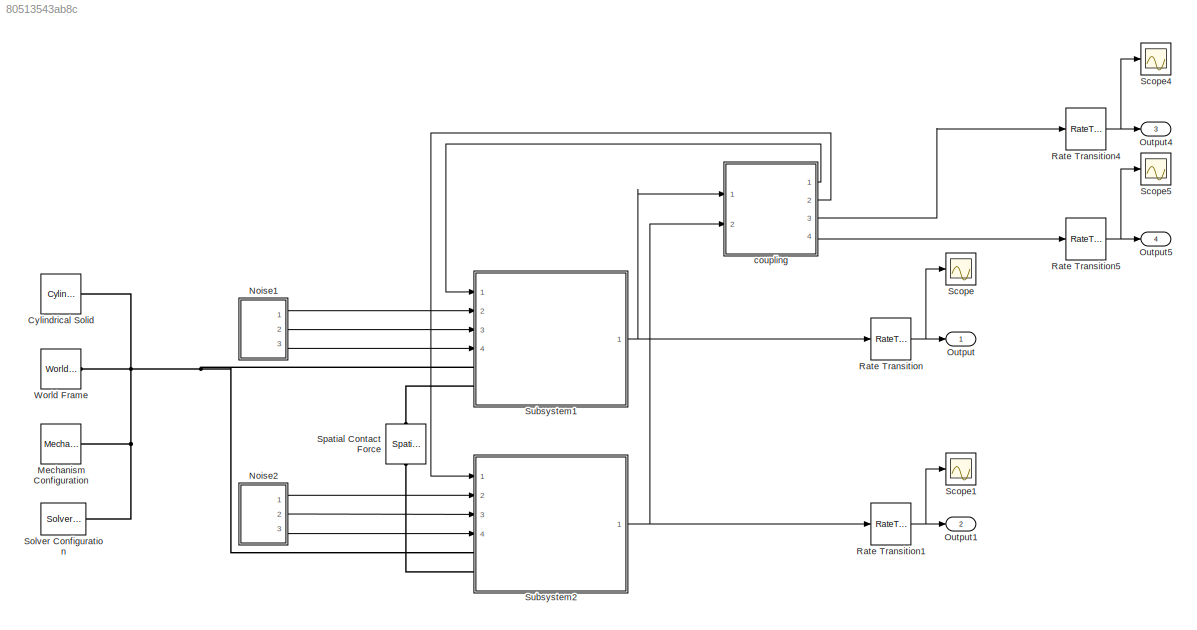
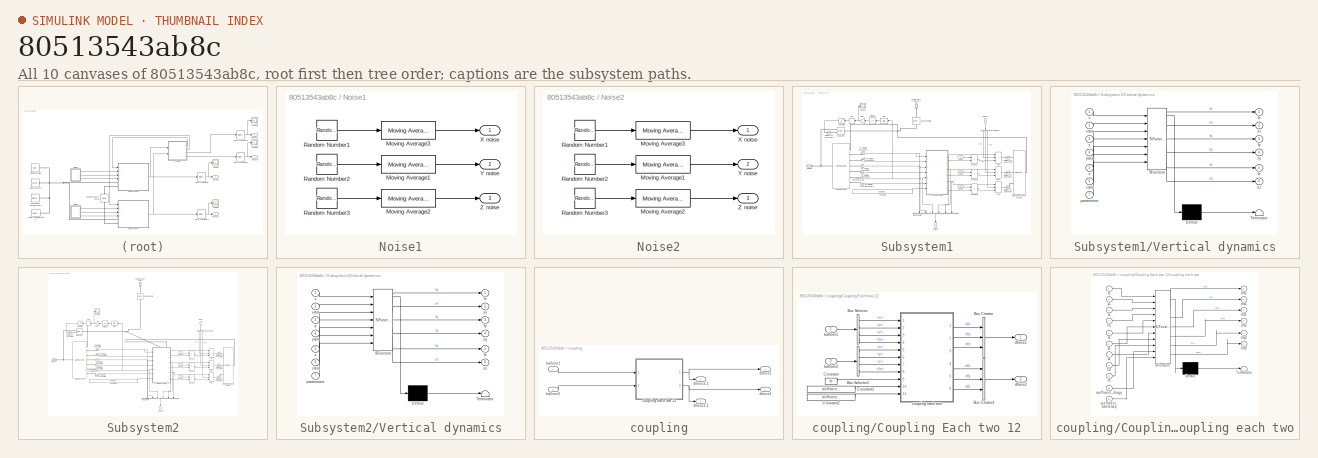
[diagram: thumbnail index - all 10 canvases of the model, root first then tree order]
MODEL slx_80513543ab8c
KIND model
CONFIG AbsTol = auto
CONFIG EnableMultiTasking = off
CONFIG FixedStep = auto
CONFIG InitFcn = seed1 = randi(100000);\nseed2 = randi(200000);
CONFIG MaxStep = auto
CONFIG MinStep = auto
CONFIG RelTol = 1e-3
CONFIG SampleTimeConstraint = Unconstrained
CONFIG SolverName = VariableStepAuto
CONFIG StartTime = 0.0
CONFIG StopTime = 300
BLOCK [Reference] Cylindrical Solid  REF=sm_lib/Body Elements/Cylindrical Solid
  Ports = [0, 0, 0, 0, 0, 0, 1]
  SourceBlock = sm_lib/Body Elements/Cylindrical Solid
  SourceProductBaseCode = MS
  SourceType = Cylindrical Solid
BLOCK [Reference] Mechanism Configuration  REF=sm_lib/Utilities/Mechanism
Configuration
  Ports = [0, 0, 0, 0, 0, 0, 1]
  SourceBlock = sm_lib/Utilities/Mechanism\nConfiguration
  SourceProductBaseCode = MS
  SourceType = Mechanism\nConfiguration
BLOCK [SubSystem] Noise1
  Ports = [0, 3]
  RequestExecContextInheritance = off
BLOCK [Outport] Noise1/ Y noise
  Port = 2
BLOCK [Reference] Noise1/Moving Average1  REF=eeGeneralControl/Moving Average
  Ports = [1, 1]
  SourceBlock = eeGeneralControl/Moving Average
  SourceProductBaseCode = PS
  SourceType = Moving Average
BLOCK [Reference] Noise1/Moving Average2  REF=eeGeneralControl/Moving Average
  Ports = [1, 1]
  SourceBlock = eeGeneralControl/Moving Average
  SourceProductBaseCode = PS
  SourceType = Moving Average
BLOCK [Reference] Noise1/Moving Average3  REF=eeGeneralControl/Moving Average
  Ports = [1, 1]
  SourceBlock = eeGeneralControl/Moving Average
  SourceProductBaseCode = PS
  SourceType = Moving Average
BLOCK [RandomNumber] Noise1/Random Number1
  SampleTime = nS
  Seed = seedX1
  Variance = nH
BLOCK [RandomNumber] Noise1/Random Number2
  SampleTime = nS
  Seed = seedY1
  Variance = nH
BLOCK [RandomNumber] Noise1/Random Number3
  SampleTime = nS
  Seed = seedZ1
  Variance = nV
BLOCK [Outport] Noise1/X noise
BLOCK [Outport] Noise1/Z noise
  Port = 3
BLOCK [SubSystem] Noise2
  Ports = [0, 3]
  RequestExecContextInheritance = off
BLOCK [Outport] Noise2/ Y noise
  Port = 2
BLOCK [Reference] Noise2/Moving Average1  REF=eeGeneralControl/Moving Average
  Ports = [1, 1]
  SourceBlock = eeGeneralControl/Moving Average
  SourceProductBaseCode = PS
  SourceType = Moving Average
BLOCK [Reference] Noise2/Moving Average2  REF=eeGeneralControl/Moving Average
  Ports = [1, 1]
  SourceBlock = eeGeneralControl/Moving Average
  SourceProductBaseCode = PS
  SourceType = Moving Average
BLOCK [Reference] Noise2/Moving Average3  REF=eeGeneralControl/Moving Average
  Ports = [1, 1]
  SourceBlock = eeGeneralControl/Moving Average
  SourceProductBaseCode = PS
  SourceType = Moving Average
BLOCK [RandomNumber] Noise2/Random Number1
  SampleTime = nS
  Seed = seedX2
  Variance = nH
BLOCK [RandomNumber] Noise2/Random Number2
  SampleTime = nS
  Seed = seedY2
  Variance = nH
BLOCK [RandomNumber] Noise2/Random Number3
  SampleTime = nS
  Seed = seedZ2
  Variance = nV
BLOCK [Outport] Noise2/X noise
BLOCK [Outport] Noise2/Z noise
  Port = 3
BLOCK [Outport] Output
BLOCK [Outport] Output1
  Port = 2
BLOCK [Outport] Output4
  Port = 3
BLOCK [Outport] Output5
  Port = 4
BLOCK [RateTransition] Rate Transition
  OutPortSampleTime = 1/30
BLOCK [RateTransition] Rate Transition1
  OutPortSampleTime = 1/30
BLOCK [RateTransition] Rate Transition4
  OutPortSampleTime = 1/30
BLOCK [RateTransition] Rate Transition5
  OutPortSampleTime = 1/30
BLOCK [Scope] Scope
  Floating = off
  NumInputPorts = 1
  Ports = [1]
  ScopeSpecificationString = Simulink.scopes.TimeScopeBlockCfg('CurrentConfiguration', extmgr.ConfigurationSet(extmgr.Configuration('Core','General UI',true),extmgr.Configuration('Core','Source UI',true),extmgr.Configuration('Sources','WiredSimulink',true,'DataLoggingVariableName','ScopeData1'),extmgr.Configuration('Visuals','Time Domain',true,'SerializedDisplays',{struct('MinYLimReal','-1.07068','MaxYLimReal','1.0184','YLabe...<+1551ch>
BLOCK [Scope] Scope1
  Floating = off
  NumInputPorts = 1
  Ports = [1]
  ScopeSpecificationString = Simulink.scopes.TimeScopeBlockCfg('CurrentConfiguration', extmgr.ConfigurationSet(extmgr.Configuration('Core','General UI',true),extmgr.Configuration('Core','Source UI',true),extmgr.Configuration('Sources','WiredSimulink',true,'DataLoggingVariableName','ScopeData2'),extmgr.Configuration('Visuals','Time Domain',true,'SerializedDisplays',{struct('MinYLimReal','-157.50413','MaxYLimReal','351.95836','...<+1529ch>
BLOCK [Scope] Scope4
  Floating = off
  NumInputPorts = 1
  Ports = [1]
  ScopeSpecificationString = Simulink.scopes.TimeScopeBlockCfg('CurrentConfiguration', extmgr.ConfigurationSet(extmgr.Configuration('Core','General UI',true),extmgr.Configuration('Core','Source UI',true),extmgr.Configuration('Sources','WiredSimulink',true,'DataLoggingVariableName','ScopeData1'),extmgr.Configuration('Visuals','Time Domain',true,'SerializedDisplays',{struct('MinYLimReal','-1.07068','MaxYLimReal','1.0184','YLabe...<+1551ch>
BLOCK [Scope] Scope5
  Floating = off
  NumInputPorts = 1
  Ports = [1]
  ScopeSpecificationString = Simulink.scopes.TimeScopeBlockCfg('CurrentConfiguration', extmgr.ConfigurationSet(extmgr.Configuration('Core','General UI',true),extmgr.Configuration('Core','Source UI',true),extmgr.Configuration('Sources','WiredSimulink',true,'DataLoggingVariableName','ScopeData2'),extmgr.Configuration('Visuals','Time Domain',true,'SerializedDisplays',{struct('MinYLimReal','-1.07068','MaxYLimReal','1.0184','YLabe...<+1551ch>
BLOCK [Reference] Solver Configuration  REF=nesl_utility/Solver
Configuration
  Ports = [0, 0, 0, 0, 0, 0, 1]
  SourceBlock = nesl_utility/Solver\nConfiguration
  SourceProductBaseCode = SS
  SourceType = Solver\nConfiguration
BLOCK [Reference] Spatial Contact Force  REF=sm_lib/Forces and
Torques/Spatial
Contact Force
  NameLocation = left
  Ports = [0, 0, 0, 0, 0, 1, 1]
  SourceBlock = sm_lib/Forces and\nTorques/Spatial\nContact Force
  SourceProductBaseCode = MS
  SourceType = Spatial\nContact Force
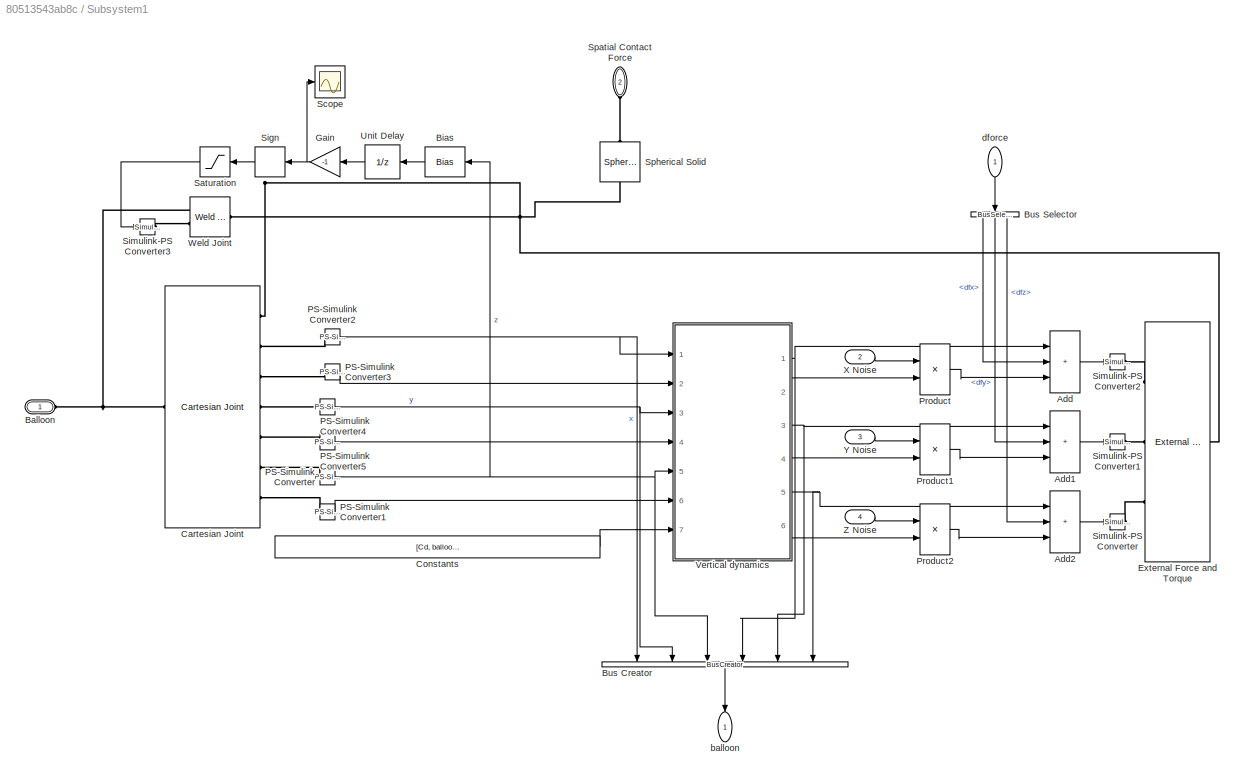
BLOCK [SubSystem] Subsystem1
  Ports = [4, 1, 0, 0, 0, 2]
  RequestExecContextInheritance = off
BLOCK [Sum] Subsystem1/Add
  IconShape = rectangular
  Inputs = +++
  Ports = [3, 1]
BLOCK [Sum] Subsystem1/Add1
  IconShape = rectangular
  Inputs = +++
  Ports = [3, 1]
BLOCK [Sum] Subsystem1/Add2
  IconShape = rectangular
  Inputs = +++
  Ports = [3, 1]
BLOCK [PMIOPort] Subsystem1/Balloon
  Side = Left
BLOCK [Bias] Subsystem1/Bias
  Bias = balloonRadius
  NameLocation = top
  SaturateOnIntegerOverflow = off
BLOCK [BusCreator] Subsystem1/Bus Creator
  DisplayOption = bar
  InheritFromInputs = on
  Inputs = 6
  NameLocation = left
  Ports = [6, 1]
BLOCK [BusSelector] Subsystem1/Bus Selector
  NameLocation = left
  OutputSignals = dfx,dfy,dfz
  Ports = [1, 3]
BLOCK [Reference] Subsystem1/Cartesian Joint  REF=sm_lib/Joints/Cartesian
Joint
  Ports = [0, 0, 0, 0, 0, 1, 7]
  SourceBlock = sm_lib/Joints/Cartesian\nJoint
  SourceProductBaseCode = MS
  SourceType = Cartesian\nJoint
BLOCK [Constant] Subsystem1/Constants
  Value = [Cd, balloonRadius, nozzleRadius, theta, V0, normalScaling]
BLOCK [Reference] Subsystem1/External Force and Torque  REF=sm_lib/Forces and
Torques/External Force
and Torque
  Ports = [0, 0, 0, 0, 0, 3, 1]
  SourceBlock = sm_lib/Forces and\nTorques/External Force\nand Torque
  SourceProductBaseCode = MS
  SourceType = External Force\nand Torque
BLOCK [Gain] Subsystem1/Gain
  Gain = -1
  NameLocation = top
BLOCK [Reference] Subsystem1/PS-Simulink Converter  REF=nesl_utility/PS-Simulink
Converter
  Ports = [0, 1, 0, 0, 0, 1]
  SourceBlock = nesl_utility/PS-Simulink\nConverter
  SourceProductBaseCode = SS
  SourceType = PS-Simulink\nConverter
BLOCK [Reference] Subsystem1/PS-Simulink Converter1  REF=nesl_utility/PS-Simulink
Converter
  Ports = [0, 1, 0, 0, 0, 1]
  SourceBlock = nesl_utility/PS-Simulink\nConverter
  SourceProductBaseCode = SS
  SourceType = PS-Simulink\nConverter
BLOCK [Reference] Subsystem1/PS-Simulink Converter2  REF=nesl_utility/PS-Simulink
Converter
  Ports = [0, 1, 0, 0, 0, 1]
  SourceBlock = nesl_utility/PS-Simulink\nConverter
  SourceProductBaseCode = SS
  SourceType = PS-Simulink\nConverter
BLOCK [Reference] Subsystem1/PS-Simulink Converter3  REF=nesl_utility/PS-Simulink
Converter
  Ports = [0, 1, 0, 0, 0, 1]
  SourceBlock = nesl_utility/PS-Simulink\nConverter
  SourceProductBaseCode = SS
  SourceType = PS-Simulink\nConverter
BLOCK [Reference] Subsystem1/PS-Simulink Converter4  REF=nesl_utility/PS-Simulink
Converter
  Ports = [0, 1, 0, 0, 0, 1]
  SourceBlock = nesl_utility/PS-Simulink\nConverter
  SourceProductBaseCode = SS
  SourceType = PS-Simulink\nConverter
BLOCK [Reference] Subsystem1/PS-Simulink Converter5  REF=nesl_utility/PS-Simulink
Converter
  Ports = [0, 1, 0, 0, 0, 1]
  SourceBlock = nesl_utility/PS-Simulink\nConverter
  SourceProductBaseCode = SS
  SourceType = PS-Simulink\nConverter
BLOCK [Product] Subsystem1/Product
  Ports = [2, 1]
BLOCK [Product] Subsystem1/Product1
  Ports = [2, 1]
BLOCK [Product] Subsystem1/Product2
  Ports = [2, 1]
BLOCK [Saturate] Subsystem1/Saturation
  LowerLimit = -1
  NameLocation = top
  UpperLimit = 0
BLOCK [Scope] Subsystem1/Scope
  Floating = off
  NumInputPorts = 1
  Ports = [1]
  ScopeSpecificationString = Simulink.scopes.TimeScopeBlockCfg('CurrentConfiguration', extmgr.ConfigurationSet(extmgr.Configuration('Core','General UI',true),extmgr.Configuration('Core','Source UI',true),extmgr.Configuration('Sources','WiredSimulink',true,'DataLoggingVariableName','ScopeData2'),extmgr.Configuration('Visuals','Time Domain',true,'SerializedDisplays',{struct('MinYLimReal','-2.54822','MaxYLimReal','0.3081','YLabe...<+1391ch>
BLOCK [Signum] Subsystem1/Sign
  NameLocation = top
BLOCK [Reference] Subsystem1/Simulink-PS Converter  REF=nesl_utility/Simulink-PS
Converter
  Ports = [1, 0, 0, 0, 0, 0, 1]
  SourceBlock = nesl_utility/Simulink-PS\nConverter
  SourceProductBaseCode = SS
  SourceType = Simulink-PS\nConverter
BLOCK [Reference] Subsystem1/Simulink-PS Converter1  REF=nesl_utility/Simulink-PS
Converter
  Ports = [1, 0, 0, 0, 0, 0, 1]
  SourceBlock = nesl_utility/Simulink-PS\nConverter
  SourceProductBaseCode = SS
  SourceType = Simulink-PS\nConverter
BLOCK [Reference] Subsystem1/Simulink-PS Converter2  REF=nesl_utility/Simulink-PS
Converter
  Ports = [1, 0, 0, 0, 0, 0, 1]
  SourceBlock = nesl_utility/Simulink-PS\nConverter
  SourceProductBaseCode = SS
  SourceType = Simulink-PS\nConverter
BLOCK [Reference] Subsystem1/Simulink-PS Converter3  REF=nesl_utility/Simulink-PS
Converter
  Ports = [1, 0, 0, 0, 0, 0, 1]
  SourceBlock = nesl_utility/Simulink-PS\nConverter
  SourceProductBaseCode = SS
  SourceType = Simulink-PS\nConverter
BLOCK [PMIOPort] Subsystem1/Spatial Contact Force
  NameLocation = left
  Port = 2
  Side = Left
BLOCK [Reference] Subsystem1/Spherical Solid  REF=sm_lib/Body Elements/Spherical Solid
  NameLocation = left
  Ports = [0, 0, 0, 0, 0, 1, 1]
  SourceBlock = sm_lib/Body Elements/Spherical Solid
  SourceProductBaseCode = MS
  SourceType = Spherical Solid
BLOCK [UnitDelay] Subsystem1/Unit Delay
  HasFrameUpgradeWarning = on
  InitialCondition = initialHeight+balloonRadius
  NameLocation = top
  SampleTime = 0.01
BLOCK [SubSystem] Subsystem1/Vertical dynamics
  ErrorFcn = Stateflow.Translate.translate
  PermitHierarchicalResolution = ExplicitOnly
  Ports = [7, 6]
  RequestExecContextInheritance = off
  SFBlockType = MATLAB Function
  TreatAsAtomicUnit = on
BLOCK [Demux] Subsystem1/Vertical dynamics/ Demux 
  Outputs = 1
  Ports = [1, 1]
BLOCK [S-Function] Subsystem1/Vertical dynamics/ SFunction 
  EnableBusSupport = on
  FunctionName = sf_sfun
  PortCounts = [7 7]
  Ports = [7, 7]
  SFcnIsStateOwnerBlock = off
  SFunctionDeploymentMode = off
  Tag = Stateflow S-Function 2
BLOCK [Terminator] Subsystem1/Vertical dynamics/ Terminator 
BLOCK [Outport] Subsystem1/Vertical dynamics/fx
BLOCK [Outport] Subsystem1/Vertical dynamics/fy
  Port = 3
BLOCK [Outport] Subsystem1/Vertical dynamics/fz
  Port = 5
BLOCK [Inport] Subsystem1/Vertical dynamics/parameters
  Port = 7
BLOCK [Outport] Subsystem1/Vertical dynamics/sx
  Port = 2
BLOCK [Outport] Subsystem1/Vertical dynamics/sy
  Port = 4
BLOCK [Outport] Subsystem1/Vertical dynamics/sz
  Port = 6
BLOCK [Inport] Subsystem1/Vertical dynamics/x
BLOCK [Inport] Subsystem1/Vertical dynamics/xdot
  Port = 2
BLOCK [Inport] Subsystem1/Vertical dynamics/y
  Port = 3
BLOCK [Inport] Subsystem1/Vertical dynamics/ydot
  Port = 4
BLOCK [Inport] Subsystem1/Vertical dynamics/z
  Port = 5
BLOCK [Inport] Subsystem1/Vertical dynamics/zdot
  Port = 6
BLOCK [Reference] Subsystem1/Weld Joint  REF=sm_lib/Joints/Weld Joint
  Ports = [0, 0, 0, 0, 0, 2, 1]
  SourceBlock = sm_lib/Joints/Weld Joint
  SourceProductBaseCode = MS
  SourceType = Weld Joint
BLOCK [Inport] Subsystem1/X Noise
  Port = 2
BLOCK [Inport] Subsystem1/Y Noise
  Port = 3
BLOCK [Inport] Subsystem1/Z Noise
  Port = 4
BLOCK [Outport] Subsystem1/balloon
  NameLocation = left
BLOCK [Inport] Subsystem1/dforce
  NameLocation = left
BLOCK [SubSystem] Subsystem2
  Ports = [4, 1, 0, 0, 0, 2]
  RequestExecContextInheritance = off
BLOCK [Sum] Subsystem2/Add
  IconShape = rectangular
  Inputs = +++
  Ports = [3, 1]
BLOCK [Sum] Subsystem2/Add1
  IconShape = rectangular
  Inputs = +++
  Ports = [3, 1]
BLOCK [Sum] Subsystem2/Add2
  IconShape = rectangular
  Inputs = +++
  Ports = [3, 1]
BLOCK [PMIOPort] Subsystem2/Balloon
  Side = Left
BLOCK [Bias] Subsystem2/Bias
  Bias = balloonRadius
  NameLocation = top
  SaturateOnIntegerOverflow = off
BLOCK [BusCreator] Subsystem2/Bus Creator
  DisplayOption = bar
  InheritFromInputs = on
  Inputs = 6
  NameLocation = left
  Ports = [6, 1]
BLOCK [BusSelector] Subsystem2/Bus Selector
  NameLocation = left
  OutputSignals = dfx,dfy,dfz
  Ports = [1, 3]
BLOCK [Reference] Subsystem2/Cartesian Joint  REF=sm_lib/Joints/Cartesian
Joint
  Ports = [0, 0, 0, 0, 0, 1, 7]
  SourceBlock = sm_lib/Joints/Cartesian\nJoint
  SourceProductBaseCode = MS
  SourceType = Cartesian\nJoint
BLOCK [Constant] Subsystem2/Constants
  Value = [Cd, balloonRadius, nozzleRadius, theta, V0, normalScaling]
BLOCK [Reference] Subsystem2/External Force and Torque  REF=sm_lib/Forces and
Torques/External Force
and Torque
  Ports = [0, 0, 0, 0, 0, 3, 1]
  SourceBlock = sm_lib/Forces and\nTorques/External Force\nand Torque
  SourceProductBaseCode = MS
  SourceType = External Force\nand Torque
BLOCK [Gain] Subsystem2/Gain
  Gain = -1
  NameLocation = top
BLOCK [Reference] Subsystem2/PS-Simulink Converter  REF=nesl_utility/PS-Simulink
Converter
  Ports = [0, 1, 0, 0, 0, 1]
  SourceBlock = nesl_utility/PS-Simulink\nConverter
  SourceProductBaseCode = SS
  SourceType = PS-Simulink\nConverter
BLOCK [Reference] Subsystem2/PS-Simulink Converter1  REF=nesl_utility/PS-Simulink
Converter
  Ports = [0, 1, 0, 0, 0, 1]
  SourceBlock = nesl_utility/PS-Simulink\nConverter
  SourceProductBaseCode = SS
  SourceType = PS-Simulink\nConverter
BLOCK [Reference] Subsystem2/PS-Simulink Converter2  REF=nesl_utility/PS-Simulink
Converter
  Ports = [0, 1, 0, 0, 0, 1]
  SourceBlock = nesl_utility/PS-Simulink\nConverter
  SourceProductBaseCode = SS
  SourceType = PS-Simulink\nConverter
BLOCK [Reference] Subsystem2/PS-Simulink Converter3  REF=nesl_utility/PS-Simulink
Converter
  Ports = [0, 1, 0, 0, 0, 1]
  SourceBlock = nesl_utility/PS-Simulink\nConverter
  SourceProductBaseCode = SS
  SourceType = PS-Simulink\nConverter
BLOCK [Reference] Subsystem2/PS-Simulink Converter4  REF=nesl_utility/PS-Simulink
Converter
  Ports = [0, 1, 0, 0, 0, 1]
  SourceBlock = nesl_utility/PS-Simulink\nConverter
  SourceProductBaseCode = SS
  SourceType = PS-Simulink\nConverter
BLOCK [Reference] Subsystem2/PS-Simulink Converter5  REF=nesl_utility/PS-Simulink
Converter
  Ports = [0, 1, 0, 0, 0, 1]
  SourceBlock = nesl_utility/PS-Simulink\nConverter
  SourceProductBaseCode = SS
  SourceType = PS-Simulink\nConverter
BLOCK [Product] Subsystem2/Product
  Ports = [2, 1]
BLOCK [Product] Subsystem2/Product1
  Ports = [2, 1]
BLOCK [Product] Subsystem2/Product2
  Ports = [2, 1]
BLOCK [Saturate] Subsystem2/Saturation
  LowerLimit = -1
  NameLocation = top
  UpperLimit = 0
BLOCK [Scope] Subsystem2/Scope
  Floating = off
  NumInputPorts = 1
  Ports = [1]
  ScopeSpecificationString = Simulink.scopes.TimeScopeBlockCfg('CurrentConfiguration', extmgr.ConfigurationSet(extmgr.Configuration('Core','General UI',true),extmgr.Configuration('Core','Source UI',true),extmgr.Configuration('Sources','WiredSimulink',true,'DataLoggingVariableName','ScopeData2'),extmgr.Configuration('Visuals','Time Domain',true,'SerializedDisplays',{struct('MinYLimReal','-0.54','MaxYLimReal','-0.34','YLabelRea...<+1377ch>
BLOCK [Signum] Subsystem2/Sign
  NameLocation = top
BLOCK [Reference] Subsystem2/Simulink-PS Converter  REF=nesl_utility/Simulink-PS
Converter
  Ports = [1, 0, 0, 0, 0, 0, 1]
  SourceBlock = nesl_utility/Simulink-PS\nConverter
  SourceProductBaseCode = SS
  SourceType = Simulink-PS\nConverter
BLOCK [Reference] Subsystem2/Simulink-PS Converter1  REF=nesl_utility/Simulink-PS
Converter
  Ports = [1, 0, 0, 0, 0, 0, 1]
  SourceBlock = nesl_utility/Simulink-PS\nConverter
  SourceProductBaseCode = SS
  SourceType = Simulink-PS\nConverter
BLOCK [Reference] Subsystem2/Simulink-PS Converter2  REF=nesl_utility/Simulink-PS
Converter
  Ports = [1, 0, 0, 0, 0, 0, 1]
  SourceBlock = nesl_utility/Simulink-PS\nConverter
  SourceProductBaseCode = SS
  SourceType = Simulink-PS\nConverter
BLOCK [Reference] Subsystem2/Simulink-PS Converter3  REF=nesl_utility/Simulink-PS
Converter
  Ports = [1, 0, 0, 0, 0, 0, 1]
  SourceBlock = nesl_utility/Simulink-PS\nConverter
  SourceProductBaseCode = SS
  SourceType = Simulink-PS\nConverter
BLOCK [PMIOPort] Subsystem2/Spatial Contact Force
  NameLocation = left
  Port = 2
  Side = Left
BLOCK [Reference] Subsystem2/Spherical Solid  REF=sm_lib/Body Elements/Spherical Solid
  NameLocation = left
  Ports = [0, 0, 0, 0, 0, 1, 1]
  SourceBlock = sm_lib/Body Elements/Spherical Solid
  SourceProductBaseCode = MS
  SourceType = Spherical Solid
BLOCK [UnitDelay] Subsystem2/Unit Delay
  HasFrameUpgradeWarning = on
  InitialCondition = initialHeight+balloonRadius
  NameLocation = top
  SampleTime = 0.01
BLOCK [SubSystem] Subsystem2/Vertical dynamics
  ErrorFcn = Stateflow.Translate.translate
  PermitHierarchicalResolution = ExplicitOnly
  Ports = [7, 6]
  RequestExecContextInheritance = off
  SFBlockType = MATLAB Function
  TreatAsAtomicUnit = on
BLOCK [Demux] Subsystem2/Vertical dynamics/ Demux 
  Outputs = 1
  Ports = [1, 1]
BLOCK [S-Function] Subsystem2/Vertical dynamics/ SFunction 
  EnableBusSupport = on
  FunctionName = sf_sfun
  PortCounts = [7 7]
  Ports = [7, 7]
  SFcnIsStateOwnerBlock = off
  SFunctionDeploymentMode = off
  Tag = Stateflow S-Function 1
BLOCK [Terminator] Subsystem2/Vertical dynamics/ Terminator 
BLOCK [Outport] Subsystem2/Vertical dynamics/fx
BLOCK [Outport] Subsystem2/Vertical dynamics/fy
  Port = 3
BLOCK [Outport] Subsystem2/Vertical dynamics/fz
  Port = 5
BLOCK [Inport] Subsystem2/Vertical dynamics/parameters
  Port = 7
BLOCK [Outport] Subsystem2/Vertical dynamics/sx
  Port = 2
BLOCK [Outport] Subsystem2/Vertical dynamics/sy
  Port = 4
BLOCK [Outport] Subsystem2/Vertical dynamics/sz
  Port = 6
BLOCK [Inport] Subsystem2/Vertical dynamics/x
BLOCK [Inport] Subsystem2/Vertical dynamics/xdot
  Port = 2
BLOCK [Inport] Subsystem2/Vertical dynamics/y
  Port = 3
BLOCK [Inport] Subsystem2/Vertical dynamics/ydot
  Port = 4
BLOCK [Inport] Subsystem2/Vertical dynamics/z
  Port = 5
BLOCK [Inport] Subsystem2/Vertical dynamics/zdot
  Port = 6
BLOCK [Reference] Subsystem2/Weld Joint  REF=sm_lib/Joints/Weld Joint
  Ports = [0, 0, 0, 0, 0, 2, 1]
  SourceBlock = sm_lib/Joints/Weld Joint
  SourceProductBaseCode = MS
  SourceType = Weld Joint
BLOCK [Inport] Subsystem2/X Noise
  Port = 2
BLOCK [Inport] Subsystem2/Y Noise
  Port = 3
BLOCK [Inport] Subsystem2/Z Noise
  Port = 4
BLOCK [Outport] Subsystem2/balloon
  NameLocation = left
BLOCK [Inport] Subsystem2/dforce
  NameLocation = left
BLOCK [Reference] World Frame  REF=sm_lib/Frames and
Transforms/World Frame
  Ports = [0, 0, 0, 0, 0, 0, 1]
  SourceBlock = sm_lib/Frames and\nTransforms/World Frame
  SourceProductBaseCode = MS
  SourceType = World Frame
BLOCK [SubSystem] coupling
  Ports = [2, 4]
  RequestExecContextInheritance = off
BLOCK [SubSystem] coupling/Coupling Each two 12
  Ports = [2, 2]
  RequestExecContextInheritance = off
BLOCK [BusCreator] coupling/Coupling Each two 12/Bus Creator
  DisplayOption = bar
  InheritFromInputs = on
  Inputs = 3
  Ports = [3, 1]
BLOCK [BusCreator] coupling/Coupling Each two 12/Bus Creator1
  DisplayOption = bar
  InheritFromInputs = on
  Inputs = 3
  Ports = [3, 1]
BLOCK [BusSelector] coupling/Coupling Each two 12/Bus Selector
  OutputSignals = x,y,z,fz
  Ports = [1, 4]
BLOCK [BusSelector] coupling/Coupling Each two 12/Bus Selector1
  OutputSignals = x,y,z,fz
  Ports = [1, 4]
BLOCK [Constant] coupling/Coupling Each two 12/Constant
  Value = rb
BLOCK [Constant] coupling/Coupling Each two 12/Constant1
  Value = coefficient_dragq
BLOCK [Constant] coupling/Coupling Each two 12/Constant2
  Value = coefficient_sideforceq
BLOCK [Inport] coupling/Coupling Each two 12/balloon1
BLOCK [Inport] coupling/Coupling Each two 12/balloon2
  Port = 2
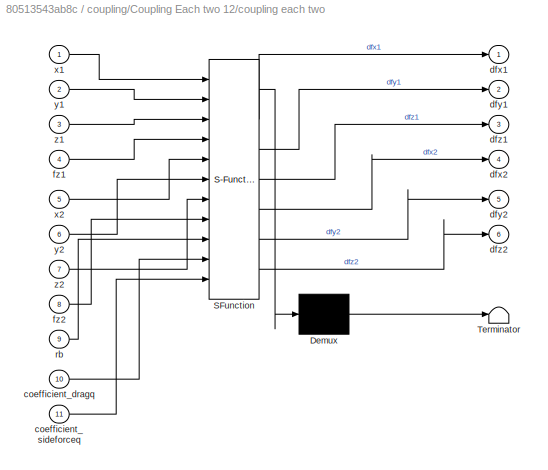
BLOCK [SubSystem] coupling/Coupling Each two 12/coupling each two
  ErrorFcn = Stateflow.Translate.translate
  PermitHierarchicalResolution = ExplicitOnly
  Ports = [11, 6]
  RequestExecContextInheritance = off
  SFBlockType = MATLAB Function
  TreatAsAtomicUnit = on
BLOCK [Demux] coupling/Coupling Each two 12/coupling each two/ Demux 
  Outputs = 1
  Ports = [1, 1]
BLOCK [S-Function] coupling/Coupling Each two 12/coupling each two/ SFunction 
  EnableBusSupport = on
  FunctionName = sf_sfun
  PortCounts = [11 7]
  Ports = [11, 7]
  SFcnIsStateOwnerBlock = off
  SFunctionDeploymentMode = off
  Tag = Stateflow S-Function 3
BLOCK [Terminator] coupling/Coupling Each two 12/coupling each two/ Terminator 
BLOCK [Inport] coupling/Coupling Each two 12/coupling each two/coefficient_dragq
  Port = 10
BLOCK [Inport] coupling/Coupling Each two 12/coupling each two/coefficient_sideforceq
  Port = 11
BLOCK [Outport] coupling/Coupling Each two 12/coupling each two/dfx1
BLOCK [Outport] coupling/Coupling Each two 12/coupling each two/dfx2
  Port = 4
BLOCK [Outport] coupling/Coupling Each two 12/coupling each two/dfy1
  Port = 2
BLOCK [Outport] coupling/Coupling Each two 12/coupling each two/dfy2
  Port = 5
BLOCK [Outport] coupling/Coupling Each two 12/coupling each two/dfz1
  Port = 3
BLOCK [Outport] coupling/Coupling Each two 12/coupling each two/dfz2
  Port = 6
BLOCK [Inport] coupling/Coupling Each two 12/coupling each two/fz1
  Port = 4
BLOCK [Inport] coupling/Coupling Each two 12/coupling each two/fz2
  Port = 8
BLOCK [Inport] coupling/Coupling Each two 12/coupling each two/rb
  Port = 9
BLOCK [Inport] coupling/Coupling Each two 12/coupling each two/x1
BLOCK [Inport] coupling/Coupling Each two 12/coupling each two/x2
  Port = 5
BLOCK [Inport] coupling/Coupling Each two 12/coupling each two/y1
  Port = 2
BLOCK [Inport] coupling/Coupling Each two 12/coupling each two/y2
  Port = 6
BLOCK [Inport] coupling/Coupling Each two 12/coupling each two/z1
  Port = 3
BLOCK [Inport] coupling/Coupling Each two 12/coupling each two/z2
  Port = 7
BLOCK [Outport] coupling/Coupling Each two 12/dforce1
BLOCK [Outport] coupling/Coupling Each two 12/dforce2
  Port = 2
BLOCK [Inport] coupling/balloon1
BLOCK [Inport] coupling/balloon2
  Port = 2
BLOCK [Outport] coupling/dforce1
BLOCK [Outport] coupling/dforce1-2
  Port = 4
BLOCK [Outport] coupling/dforce2
  Port = 2
BLOCK [Outport] coupling/dforce2-1
  Port = 3
LINE Noise1/Moving Average1:1 -> Noise1/ Y noise:1
LINE Noise1/Moving Average2:1 -> Noise1/Z noise:1
LINE Noise1/Moving Average3:1 -> Noise1/X noise:1
LINE Noise1/Random Number1:1 -> Noise1/Moving Average3:1
LINE Noise1/Random Number2:1 -> Noise1/Moving Average1:1
LINE Noise1/Random Number3:1 -> Noise1/Moving Average2:1
LINE Noise1:1 -> Subsystem1:2
LINE Noise1:2 -> Subsystem1:3
LINE Noise1:3 -> Subsystem1:4
LINE Noise2/Moving Average1:1 -> Noise2/ Y noise:1
LINE Noise2/Moving Average2:1 -> Noise2/Z noise:1
LINE Noise2/Moving Average3:1 -> Noise2/X noise:1
LINE Noise2/Random Number1:1 -> Noise2/Moving Average3:1
LINE Noise2/Random Number2:1 -> Noise2/Moving Average1:1
LINE Noise2/Random Number3:1 -> Noise2/Moving Average2:1
LINE Noise2:1 -> Subsystem2:2
LINE Noise2:2 -> Subsystem2:3
LINE Noise2:3 -> Subsystem2:4
NET Rate Transition1:1 -> Output1:1, Scope1:1
NET Rate Transition4:1 -> Output4:1, Scope4:1
NET Rate Transition5:1 -> Output5:1, Scope5:1
NET Rate Transition:1 -> Output:1, Scope:1
LINE Subsystem1/Add1:1 -> Subsystem1/Simulink-PS Converter1:1
LINE Subsystem1/Add2:1 -> Subsystem1/Simulink-PS Converter:1
LINE Subsystem1/Add:1 -> Subsystem1/Simulink-PS Converter2:1
LINE Subsystem1/Bias:1 -> Subsystem1/Unit Delay:1
LINE Subsystem1/Bus Creator:1 -> Subsystem1/balloon:1
LINE Subsystem1/Bus Selector:1 -> Subsystem1/Add:2
LINE Subsystem1/Bus Selector:2 -> Subsystem1/Add1:2
LINE Subsystem1/Bus Selector:3 -> Subsystem1/Add2:2
LINE Subsystem1/Constants:1 -> Subsystem1/Vertical dynamics:7
NET Subsystem1/Gain:1 -> Subsystem1/Scope:1, Subsystem1/Sign:1
LINE Subsystem1/PS-Simulink Converter1:1 -> Subsystem1/Vertical dynamics:6
NET Subsystem1/PS-Simulink Converter2:1 -> Subsystem1/Bus Creator:1, Subsystem1/Vertical dynamics:1
LINE Subsystem1/PS-Simulink Converter3:1 -> Subsystem1/Vertical dynamics:2
NET Subsystem1/PS-Simulink Converter4:1 -> Subsystem1/Bus Creator:2, Subsystem1/Vertical dynamics:3
LINE Subsystem1/PS-Simulink Converter5:1 -> Subsystem1/Vertical dynamics:4
NET Subsystem1/PS-Simulink Converter:1 -> Subsystem1/Bias:1, Subsystem1/Bus Creator:3, Subsystem1/Vertical dynamics:5
LINE Subsystem1/Product1:1 -> Subsystem1/Add1:3
LINE Subsystem1/Product2:1 -> Subsystem1/Add2:3
LINE Subsystem1/Product:1 -> Subsystem1/Add:3
LINE Subsystem1/Saturation:1 -> Subsystem1/Simulink-PS Converter3:1
LINE Subsystem1/Sign:1 -> Subsystem1/Saturation:1
LINE Subsystem1/Unit Delay:1 -> Subsystem1/Gain:1
NET Subsystem1/Vertical dynamics:1 -> Subsystem1/Add:1, Subsystem1/Bus Creator:4
LINE Subsystem1/Vertical dynamics:2 -> Subsystem1/Product:2
NET Subsystem1/Vertical dynamics:3 -> Subsystem1/Add1:1, Subsystem1/Bus Creator:5
LINE Subsystem1/Vertical dynamics:4 -> Subsystem1/Product1:2
NET Subsystem1/Vertical dynamics:5 -> Subsystem1/Add2:1, Subsystem1/Bus Creator:6
LINE Subsystem1/Vertical dynamics:6 -> Subsystem1/Product2:2
LINE Subsystem1/X Noise:1 -> Subsystem1/Product:1
LINE Subsystem1/Y Noise:1 -> Subsystem1/Product1:1
LINE Subsystem1/Z Noise:1 -> Subsystem1/Product2:1
LINE Subsystem1/dforce:1 -> Subsystem1/Bus Selector:1
NET Subsystem1:1 -> Rate Transition:1, coupling:1
LINE Subsystem2/Add1:1 -> Subsystem2/Simulink-PS Converter1:1
LINE Subsystem2/Add2:1 -> Subsystem2/Simulink-PS Converter:1
LINE Subsystem2/Add:1 -> Subsystem2/Simulink-PS Converter2:1
LINE Subsystem2/Bias:1 -> Subsystem2/Unit Delay:1
LINE Subsystem2/Bus Creator:1 -> Subsystem2/balloon:1
LINE Subsystem2/Bus Selector:1 -> Subsystem2/Add:2
LINE Subsystem2/Bus Selector:2 -> Subsystem2/Add1:2
LINE Subsystem2/Bus Selector:3 -> Subsystem2/Add2:2
LINE Subsystem2/Constants:1 -> Subsystem2/Vertical dynamics:7
NET Subsystem2/Gain:1 -> Subsystem2/Scope:1, Subsystem2/Sign:1
LINE Subsystem2/PS-Simulink Converter1:1 -> Subsystem2/Vertical dynamics:6
NET Subsystem2/PS-Simulink Converter2:1 -> Subsystem2/Bus Creator:1, Subsystem2/Vertical dynamics:1
LINE Subsystem2/PS-Simulink Converter3:1 -> Subsystem2/Vertical dynamics:2
NET Subsystem2/PS-Simulink Converter4:1 -> Subsystem2/Bus Creator:2, Subsystem2/Vertical dynamics:3
LINE Subsystem2/PS-Simulink Converter5:1 -> Subsystem2/Vertical dynamics:4
NET Subsystem2/PS-Simulink Converter:1 -> Subsystem2/Bias:1, Subsystem2/Bus Creator:3, Subsystem2/Vertical dynamics:5
LINE Subsystem2/Product1:1 -> Subsystem2/Add1:3
LINE Subsystem2/Product2:1 -> Subsystem2/Add2:3
LINE Subsystem2/Product:1 -> Subsystem2/Add:3
LINE Subsystem2/Saturation:1 -> Subsystem2/Simulink-PS Converter3:1
LINE Subsystem2/Sign:1 -> Subsystem2/Saturation:1
LINE Subsystem2/Unit Delay:1 -> Subsystem2/Gain:1
NET Subsystem2/Vertical dynamics:1 -> Subsystem2/Add:1, Subsystem2/Bus Creator:4
LINE Subsystem2/Vertical dynamics:2 -> Subsystem2/Product:2
NET Subsystem2/Vertical dynamics:3 -> Subsystem2/Add1:1, Subsystem2/Bus Creator:5
LINE Subsystem2/Vertical dynamics:4 -> Subsystem2/Product1:2
NET Subsystem2/Vertical dynamics:5 -> Subsystem2/Add2:1, Subsystem2/Bus Creator:6
LINE Subsystem2/Vertical dynamics:6 -> Subsystem2/Product2:2
LINE Subsystem2/X Noise:1 -> Subsystem2/Product:1
LINE Subsystem2/Y Noise:1 -> Subsystem2/Product1:1
LINE Subsystem2/Z Noise:1 -> Subsystem2/Product2:1
LINE Subsystem2/dforce:1 -> Subsystem2/Bus Selector:1
NET Subsystem2:1 -> Rate Transition1:1, coupling:2
LINE coupling/Coupling Each two 12/Bus Creator1:1 -> coupling/Coupling Each two 12/dforce2:1
LINE coupling/Coupling Each two 12/Bus Creator:1 -> coupling/Coupling Each two 12/dforce1:1
LINE coupling/Coupling Each two 12/Bus Selector1:1 -> coupling/Coupling Each two 12/coupling each two:5
LINE coupling/Coupling Each two 12/Bus Selector1:2 -> coupling/Coupling Each two 12/coupling each two:6
LINE coupling/Coupling Each two 12/Bus Selector1:3 -> coupling/Coupling Each two 12/coupling each two:7
LINE coupling/Coupling Each two 12/Bus Selector1:4 -> coupling/Coupling Each two 12/coupling each two:8
LINE coupling/Coupling Each two 12/Bus Selector:1 -> coupling/Coupling Each two 12/coupling each two:1
LINE coupling/Coupling Each two 12/Bus Selector:2 -> coupling/Coupling Each two 12/coupling each two:2
LINE coupling/Coupling Each two 12/Bus Selector:3 -> coupling/Coupling Each two 12/coupling each two:3
LINE coupling/Coupling Each two 12/Bus Selector:4 -> coupling/Coupling Each two 12/coupling each two:4
LINE coupling/Coupling Each two 12/Constant1:1 -> coupling/Coupling Each two 12/coupling each two:10
LINE coupling/Coupling Each two 12/Constant2:1 -> coupling/Coupling Each two 12/coupling each two:11
LINE coupling/Coupling Each two 12/Constant:1 -> coupling/Coupling Each two 12/coupling each two:9
LINE coupling/Coupling Each two 12/balloon1:1 -> coupling/Coupling Each two 12/Bus Selector:1
LINE coupling/Coupling Each two 12/balloon2:1 -> coupling/Coupling Each two 12/Bus Selector1:1
LINE coupling/Coupling Each two 12/coupling each two:1 -> coupling/Coupling Each two 12/Bus Creator:1
LINE coupling/Coupling Each two 12/coupling each two:2 -> coupling/Coupling Each two 12/Bus Creator:2
LINE coupling/Coupling Each two 12/coupling each two:3 -> coupling/Coupling Each two 12/Bus Creator:3
LINE coupling/Coupling Each two 12/coupling each two:4 -> coupling/Coupling Each two 12/Bus Creator1:1
LINE coupling/Coupling Each two 12/coupling each two:5 -> coupling/Coupling Each two 12/Bus Creator1:2
LINE coupling/Coupling Each two 12/coupling each two:6 -> coupling/Coupling Each two 12/Bus Creator1:3
NET coupling/Coupling Each two 12:1 -> coupling/dforce1:1, coupling/dforce2-1:1
NET coupling/Coupling Each two 12:2 -> coupling/dforce1-2:1, coupling/dforce2:1
LINE coupling/balloon1:1 -> coupling/Coupling Each two 12:1
LINE coupling/balloon2:1 -> coupling/Coupling Each two 12:2
LINE coupling:1 -> Subsystem1:1
LINE coupling:2 -> Subsystem2:1
LINE coupling:3 -> Rate Transition4:1
LINE coupling:4 -> Rate Transition5:1
PNET net1: Cylindrical Solid:RConn1 -- Mechanism Configuration:RConn1 -- Solver Configuration:RConn1 -- Subsystem1:LConn1 -- Subsystem2:LConn1 -- World Frame:RConn1
PLINE Spatial Contact Force:LConn1 -- Subsystem1:LConn2
PLINE Spatial Contact Force:RConn1 -- Subsystem2:LConn2
PNET net2: Subsystem1/Balloon:RConn1 -- Subsystem1/Cartesian Joint:LConn1 -- Subsystem1/Weld Joint:LConn1
PNET net3: Subsystem1/Cartesian Joint:RConn1 -- Subsystem1/External Force and Torque:RConn1 -- Subsystem1/Spherical Solid:RConn1 -- Subsystem1/Weld Joint:RConn1
PLINE Subsystem1/Cartesian Joint:RConn2 -- Subsystem1/PS-Simulink Converter2:LConn1
PLINE Subsystem1/Cartesian Joint:RConn3 -- Subsystem1/PS-Simulink Converter3:LConn1
PLINE Subsystem1/Cartesian Joint:RConn4 -- Subsystem1/PS-Simulink Converter4:LConn1
PLINE Subsystem1/Cartesian Joint:RConn5 -- Subsystem1/PS-Simulink Converter5:LConn1
PLINE Subsystem1/Cartesian Joint:RConn6 -- Subsystem1/PS-Simulink Converter:LConn1
PLINE Subsystem1/Cartesian Joint:RConn7 -- Subsystem1/PS-Simulink Converter1:LConn1
PLINE Subsystem1/External Force and Torque:LConn1 -- Subsystem1/Simulink-PS Converter2:RConn1
PLINE Subsystem1/External Force and Torque:LConn2 -- Subsystem1/Simulink-PS Converter1:RConn1
PLINE Subsystem1/External Force and Torque:LConn3 -- Subsystem1/Simulink-PS Converter:RConn1
PLINE Subsystem1/Simulink-PS Converter3:RConn1 -- Subsystem1/Weld Joint:LConn2
PLINE Subsystem1/Spatial Contact Force:RConn1 -- Subsystem1/Spherical Solid:LConn1
PNET net4: Subsystem2/Balloon:RConn1 -- Subsystem2/Cartesian Joint:LConn1 -- Subsystem2/Weld Joint:LConn1
PNET net5: Subsystem2/Cartesian Joint:RConn1 -- Subsystem2/External Force and Torque:RConn1 -- Subsystem2/Spherical Solid:RConn1 -- Subsystem2/Weld Joint:RConn1
PLINE Subsystem2/Cartesian Joint:RConn2 -- Subsystem2/PS-Simulink Converter2:LConn1
PLINE Subsystem2/Cartesian Joint:RConn3 -- Subsystem2/PS-Simulink Converter3:LConn1
PLINE Subsystem2/Cartesian Joint:RConn4 -- Subsystem2/PS-Simulink Converter4:LConn1
PLINE Subsystem2/Cartesian Joint:RConn5 -- Subsystem2/PS-Simulink Converter5:LConn1
PLINE Subsystem2/Cartesian Joint:RConn6 -- Subsystem2/PS-Simulink Converter:LConn1
PLINE Subsystem2/Cartesian Joint:RConn7 -- Subsystem2/PS-Simulink Converter1:LConn1
PLINE Subsystem2/External Force and Torque:LConn1 -- Subsystem2/Simulink-PS Converter2:RConn1
PLINE Subsystem2/External Force and Torque:LConn2 -- Subsystem2/Simulink-PS Converter1:RConn1
PLINE Subsystem2/External Force and Torque:LConn3 -- Subsystem2/Simulink-PS Converter:RConn1
PLINE Subsystem2/Simulink-PS Converter3:RConn1 -- Subsystem2/Weld Joint:LConn2
PLINE Subsystem2/Spatial Contact Force:RConn1 -- Subsystem2/Spherical Solid:LConn1
note: NET lines group one-source signal fan-out (src -> all destinations, sorted); 1:1 wires keep LINE; PNET lines group multi-terminal physical nets as a canonical sorted terminal list (undirected conserving connections); 2-terminal nets keep the pairwise PLINE form
CHART Subsystem2/Vertical dynamics states=1 transitions=1
  STATE_LABEL 'eML_blk_kernel()'
  STATE_LABEL 'SCRIPT:\nfunction [fx,sx,fy,sy,fz,sz] = fcn(x,xdot,y,ydot,z,zdot,parameters)\n\nCd = parameters(1);\nrb = parameters(2);\nrn = parameters(3);\ntheta = deg2rad(parameters(4)); \nV0 = parameters(5); \nnormalScaling = parameters(6); \n\n%% Vertical forces\n\n%flow radius\nrFlow = rn+z*tan(theta);\n\n%Peak flow velocity\nmeanFlowVelocity = V0*rn^2/(rFlow)^2;\n\n%Velocity under ball\nvFlowActual = flowSpeed(meanFlowVeloc...<+1237ch>'
CHART Subsystem1/Vertical dynamics states=1 transitions=1
  STATE_LABEL 'eML_blk_kernel()'
  STATE_LABEL 'SCRIPT:\nfunction [fx,sx,fy,sy,fz,sz] = fcn(x,xdot,y,ydot,z,zdot,parameters)\n\nCd = parameters(1);\nrb = parameters(2);\nrn = parameters(3);\ntheta = deg2rad(parameters(4)); \nV0 = parameters(5); \nnormalScaling = parameters(6); \n\n%% Vertical forces\n\n%flow radius\nrFlow = rn+z*tan(theta);\n\n%Peak flow velocity\nmeanFlowVelocity = V0*rn^2/(rFlow)^2;\n\n%Velocity under ball\nvFlowActual = flowSpeed(meanFlowVeloc...<+1237ch>'
CHART coupling/Coupling Each two 12/coupling each two states=1 transitions=1
  STATE_LABEL 'eML_blk_kernel()'
  STATE_LABEL 'SCRIPT:\nfunction [dfx1,dfy1,dfz1,dfx2,dfy2,dfz2] = fcn(x1, y1, z1, fz1, x2, y2, z2, fz2, rb, coefficient_dragq, coefficient_sideforceq)\n    % set vector between balloons and z axis\n    vector = [x2-x1 y2-y1 z2-z1];\n    vectorz = [0 0 1];\n    % distance of balloons\n    R = norm(vector)/rb/2;\n    \n    if R >5 || R < 1 % too far\n        dfx1 = 0;\n        dfy1 = 0;\n        dfz1 = 0;\n        dfx2 = 0;\n...<+1052ch>'
CHART  states=0 transitions=0
CHART  states=0 transitions=0
CHART  states=0 transitions=0
